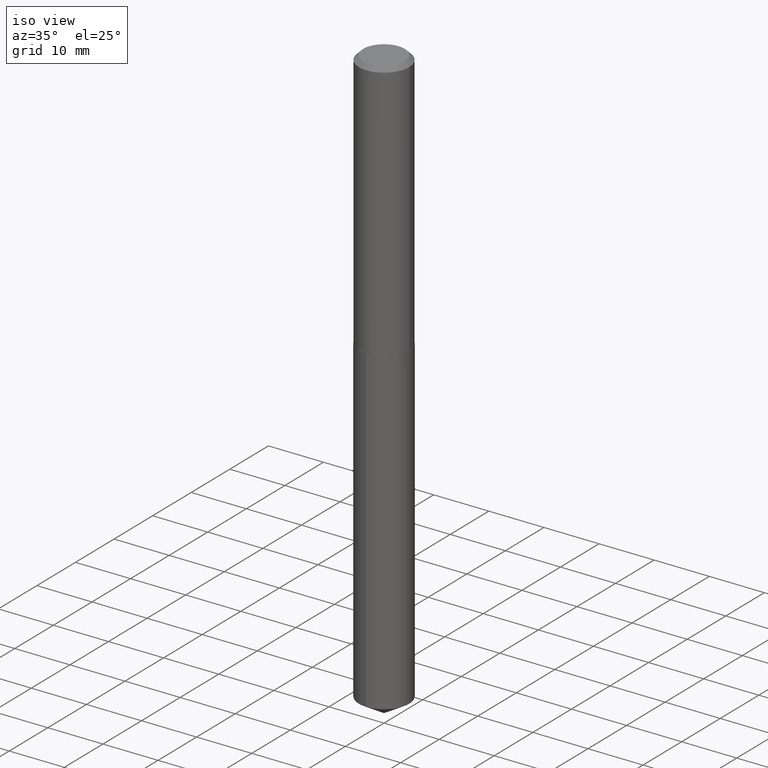
[diagram: clean part render]
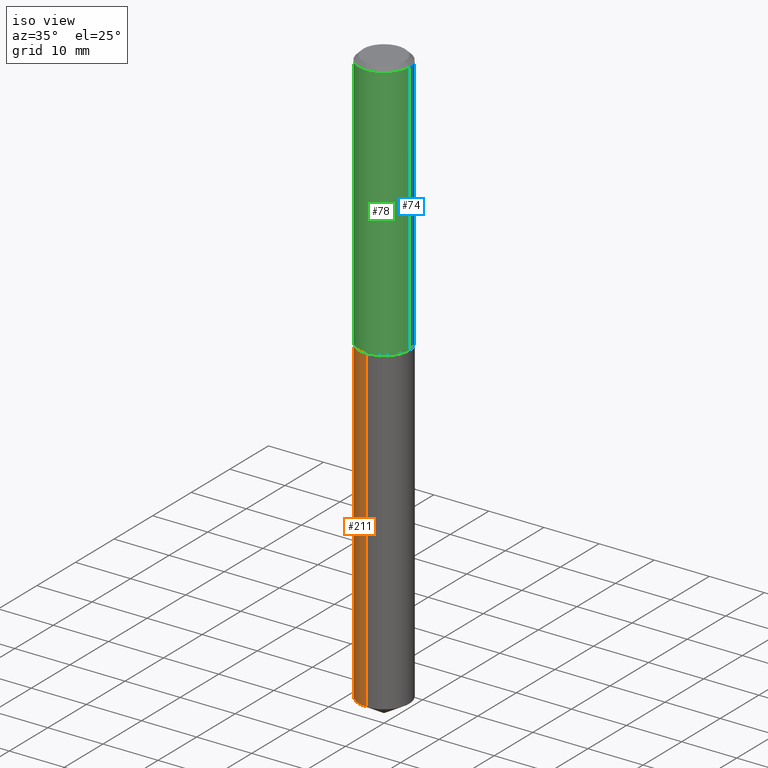
[diagram: same view with three faces highlighted in distinct colors, each labeled with its STEP entity id]
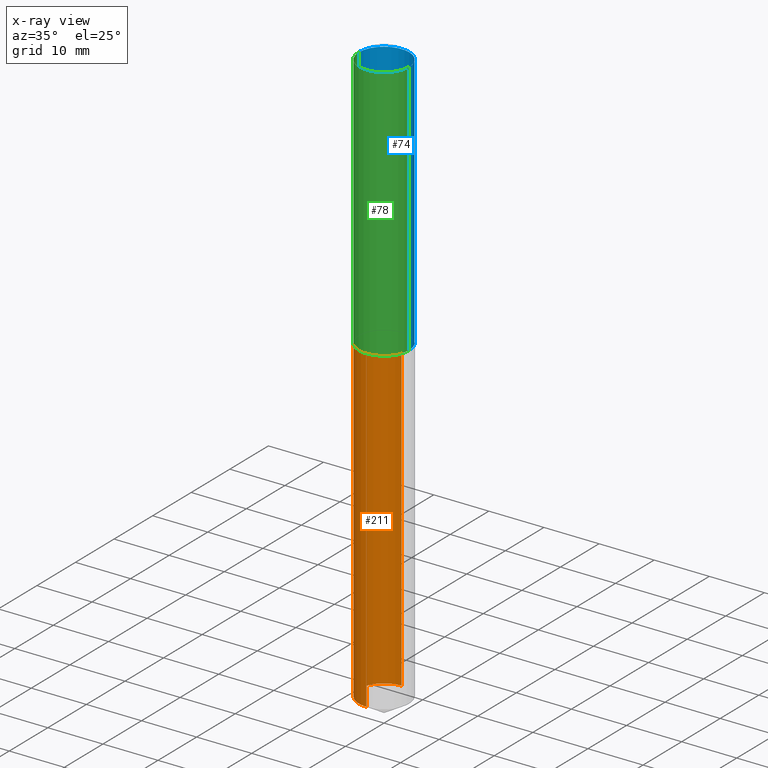
[diagram: x-ray of the same camera — body ghosted, the three highlighted faces saturated]
A machine part, iso view with three faces highlighted in distinct colors.
The next image is the same camera in x-ray (body ghosted, the three faces saturated) — at least one of them is partly hidden behind the body in this view.
Their STEP definitions:

[orange] entity #211 — the highlighted cylindrical surface (edge-blend (fillet) strip) has radius 4.5644 mm, axis along (-0, 0, 1).
#2 = VERTEX_POINT ( 'NONE', #67 ) ;
#7 = CARTESIAN_POINT ( 'NONE',  ( 1.276845296161000998E-15, 0.1796999999999854825, -4.142025346760749294 ) ) ;
#12 = LINE ( 'NONE', #288, #386 ) ;
#20 = EDGE_CURVE ( 'NONE', #55, #203, #26, .T. ) ;
#26 = CIRCLE ( 'NONE', #323, 0.1796999999999999986 ) ;
#35 = CYLINDRICAL_SURFACE ( 'NONE', #106, 0.1796999999999999986 ) ;
#55 = VERTEX_POINT ( 'NONE', #7 ) ;
#63 = ORIENTED_EDGE ( 'NONE', *, *, #141, .F. ) ;
#67 = CARTESIAN_POINT ( 'NONE',  ( -1.254838393180176568E-15, -0.1797000000000064934, -1.859399999999999054 ) ) ;
#90 = ORIENTED_EDGE ( 'NONE', *, *, #132, .T. ) ;
#104 = EDGE_LOOP ( 'NONE', ( #63, #171, #90, #277 ) ) ;
#106 = AXIS2_PLACEMENT_3D ( 'NONE', #232, #352, #202 ) ;
#132 = EDGE_CURVE ( 'NONE', #203, #2, #12, .T. ) ;
#141 = EDGE_CURVE ( 'NONE', #55, #306, #257, .T. ) ;
#145 = CARTESIAN_POINT ( 'NONE',  ( 4.547104698220641654E-29, -6.492060401444943851E-15, -1.859399999999999498 ) ) ;
#163 = CARTESIAN_POINT ( 'NONE',  ( 1.276845296161001393E-15, 0.1796999999999935038, -1.859400000000000164 ) ) ;
#167 = EDGE_CURVE ( 'NONE', #306, #2, #296, .T. ) ;
#171 = ORIENTED_EDGE ( 'NONE', *, *, #20, .T. ) ;
#172 = CARTESIAN_POINT ( 'NONE',  ( -1.254838393180120559E-15, -0.1797000000000144315, -4.142025346760748405 ) ) ;
#186 = DIRECTION ( 'NONE',  ( -6.982962677686265922E-15, -1.000000000000000000, 3.040454083098790380E-15 ) ) ;
#187 = CARTESIAN_POINT ( 'NONE',  ( 1.012921937126797406E-28, -1.446176755498018417E-14, -4.142025346760748405 ) ) ;
#202 = DIRECTION ( 'NONE',  ( -6.982962677686265922E-15, -1.000000000000000000, 3.040454083098790380E-15 ) ) ;
#203 = VERTEX_POINT ( 'NONE', #172 ) ;
#211 = ADVANCED_FACE ( 'NONE', ( #304 ), #35, .T. ) ;
#222 = VECTOR ( 'NONE', #240, 39.37007874015748143 ) ;
#229 = AXIS2_PLACEMENT_3D ( 'NONE', #145, #357, #268 ) ;
#232 = CARTESIAN_POINT ( 'NONE',  ( 4.547104698220641654E-29, -6.492060401444943851E-15, -1.859399999999999498 ) ) ;
#240 = DIRECTION ( 'NONE',  ( -2.445480017545961614E-29, 3.491465283536333646E-15, 1.000000000000000000 ) ) ;
#257 = LINE ( 'NONE', #375, #222 ) ;
#268 = DIRECTION ( 'NONE',  ( -6.982962677686265922E-15, -1.000000000000000000, 3.040454083098790380E-15 ) ) ;
#270 = DIRECTION ( 'NONE',  ( -2.445480017545961614E-29, 3.491465283536333251E-15, 1.000000000000000000 ) ) ;
#277 = ORIENTED_EDGE ( 'NONE', *, *, #167, .F. ) ;
#288 = CARTESIAN_POINT ( 'NONE',  ( -1.254838393180176568E-15, -0.1797000000000064934, -1.859399999999999054 ) ) ;
#296 = CIRCLE ( 'NONE', #229, 0.1796999999999999986 ) ;
#304 = FACE_OUTER_BOUND ( 'NONE', #104, .T. ) ;
#306 = VERTEX_POINT ( 'NONE', #163 ) ;
#323 = AXIS2_PLACEMENT_3D ( 'NONE', #187, #270, #186 ) ;
#347 = DIRECTION ( 'NONE',  ( -2.445480017545961614E-29, 3.491465283536333646E-15, 1.000000000000000000 ) ) ;
#352 = DIRECTION ( 'NONE',  ( -2.445480017545961614E-29, 3.491465283536333251E-15, 1.000000000000000000 ) ) ;
#357 = DIRECTION ( 'NONE',  ( -2.445480017545961614E-29, 3.491465283536333251E-15, 1.000000000000000000 ) ) ;
#375 = CARTESIAN_POINT ( 'NONE',  ( 1.276845296160945187E-15, 0.1796999999999935038, -1.859400000000000164 ) ) ;
#386 = VECTOR ( 'NONE', #347, 39.37007874015748143 ) ;

[blue] entity #74 — the highlighted cylindrical surface (edge-blend (fillet) strip) has radius 4.5644 mm, axis along (-0, 0, 1).
#5 = AXIS2_PLACEMENT_3D ( 'NONE', #371, #373, #348 ) ;
#24 = EDGE_CURVE ( 'NONE', #176, #329, #194, .T. ) ;
#25 = CARTESIAN_POINT ( 'NONE',  ( 0.1797000000000001929, -7.745153053955744867E-15, -1.858899999999999775 ) ) ;
#41 = CARTESIAN_POINT ( 'NONE',  ( -0.1796999999999999986, -2.022866430146284319E-15, -0.03125000000000024286 ) ) ;
#66 = CIRCLE ( 'NONE', #5, 0.1796999999999999986 ) ;
#68 = LINE ( 'NONE', #183, #73 ) ;
#72 = EDGE_CURVE ( 'NONE', #329, #94, #68, .T. ) ;
#73 = VECTOR ( 'NONE', #389, 39.37007874015748143 ) ;
#74 = ADVANCED_FACE ( 'NONE', ( #124 ), #360, .T. ) ;
#94 = VERTEX_POINT ( 'NONE', #41 ) ;
#118 = VECTOR ( 'NONE', #319, 39.37007874015748143 ) ;
#124 = FACE_OUTER_BOUND ( 'NONE', #205, .T. ) ;
#125 = DIRECTION ( 'NONE',  ( 1.000000000000000000, -6.982962677686265922E-15, 4.876176775795935232E-29 ) ) ;
#143 = LINE ( 'NONE', #195, #118 ) ;
#173 = ORIENTED_EDGE ( 'NONE', *, *, #24, .T. ) ;
#176 = VERTEX_POINT ( 'NONE', #25 ) ;
#183 = CARTESIAN_POINT ( 'NONE',  ( -0.1797000000000001096, 1.276845296160900813E-15, -8.839326357188071190E-30 ) ) ;
#192 = CARTESIAN_POINT ( 'NONE',  ( 0.1796999999999999986, -1.363947185019071028E-15, -0.03125000000000024286 ) ) ;
#194 = CIRCLE ( 'NONE', #255, 0.1797000000000001929 ) ;
#195 = CARTESIAN_POINT ( 'NONE',  ( 0.1797000000000001096, -1.254838393180222716E-15, 8.762489666105301250E-30 ) ) ;
#205 = EDGE_LOOP ( 'NONE', ( #173, #234, #212, #382 ) ) ;
#212 = ORIENTED_EDGE ( 'NONE', *, *, #305, .F. ) ;
#234 = ORIENTED_EDGE ( 'NONE', *, *, #72, .T. ) ;
#248 = DIRECTION ( 'NONE',  ( -2.445468806185136597E-29, 3.491481338843145583E-15, 1.000000000000000000 ) ) ;
#255 = AXIS2_PLACEMENT_3D ( 'NONE', #276, #337, #363 ) ;
#258 = VERTEX_POINT ( 'NONE', #192 ) ;
#271 = AXIS2_PLACEMENT_3D ( 'NONE', #333, #248, #125 ) ;
#276 = CARTESIAN_POINT ( 'NONE',  ( 4.545881963817549414E-29, -6.490314660775522348E-15, -1.858899999999999775 ) ) ;
#284 = CARTESIAN_POINT ( 'NONE',  ( -0.1797000000000001929, -5.213469364614620154E-15, -1.858899999999999775 ) ) ;
#305 = EDGE_CURVE ( 'NONE', #258, #94, #66, .T. ) ;
#319 = DIRECTION ( 'NONE',  ( -2.445468806185136877E-29, 3.491481338843145188E-15, 1.000000000000000000 ) ) ;
#329 = VERTEX_POINT ( 'NONE', #284 ) ;
#333 = CARTESIAN_POINT ( 'NONE',  ( 0.000000000000000000, 0.000000000000000000, 0.000000000000000000 ) ) ;
#337 = DIRECTION ( 'NONE',  ( -2.445468806185136597E-29, 3.491481338843145583E-15, 1.000000000000000000 ) ) ;
#348 = DIRECTION ( 'NONE',  ( 1.000000000000000000, -6.982962677686265922E-15, 0.000000000000000000 ) ) ;
#355 = EDGE_CURVE ( 'NONE', #176, #258, #143, .T. ) ;
#360 = CYLINDRICAL_SURFACE ( 'NONE', #271, 0.1797000000000001096 ) ;
#363 = DIRECTION ( 'NONE',  ( 1.000000000000000000, -6.982962677686265922E-15, 0.000000000000000000 ) ) ;
#371 = CARTESIAN_POINT ( 'NONE',  ( 7.642090019328611420E-31, -1.091087918388491499E-16, -0.03125000000000024286 ) ) ;
#373 = DIRECTION ( 'NONE',  ( -2.445468806185136597E-29, 3.491481338843145583E-15, 1.000000000000000000 ) ) ;
#382 = ORIENTED_EDGE ( 'NONE', *, *, #355, .F. ) ;
#389 = DIRECTION ( 'NONE',  ( -2.445468806185136877E-29, 3.491481338843145188E-15, 1.000000000000000000 ) ) ;

[green] entity #78 — the highlighted cylindrical surface (edge-blend (fillet) strip) has radius 4.5644 mm, axis along (-0, 0, 1).
#25 = CARTESIAN_POINT ( 'NONE',  ( 0.1797000000000001929, -7.745153053955744867E-15, -1.858899999999999775 ) ) ;
#28 = EDGE_LOOP ( 'NONE', ( #149, #237, #262, #219 ) ) ;
#41 = CARTESIAN_POINT ( 'NONE',  ( -0.1796999999999999986, -2.022866430146284319E-15, -0.03125000000000024286 ) ) ;
#44 = DIRECTION ( 'NONE',  ( -2.445468806185136597E-29, 3.491481338843145583E-15, 1.000000000000000000 ) ) ;
#46 = DIRECTION ( 'NONE',  ( -2.445468806185136597E-29, 3.491481338843145583E-15, 1.000000000000000000 ) ) ;
#68 = LINE ( 'NONE', #183, #73 ) ;
#72 = EDGE_CURVE ( 'NONE', #329, #94, #68, .T. ) ;
#73 = VECTOR ( 'NONE', #389, 39.37007874015748143 ) ;
#75 = EDGE_CURVE ( 'NONE', #329, #176, #278, .T. ) ;
#78 = ADVANCED_FACE ( 'NONE', ( #310 ), #161, .T. ) ;
#94 = VERTEX_POINT ( 'NONE', #41 ) ;
#103 = CARTESIAN_POINT ( 'NONE',  ( 4.545881963817549414E-29, -6.490314660775522348E-15, -1.858899999999999775 ) ) ;
#107 = DIRECTION ( 'NONE',  ( 1.000000000000000000, -6.982962677686265922E-15, 0.000000000000000000 ) ) ;
#118 = VECTOR ( 'NONE', #319, 39.37007874015748143 ) ;
#131 = DIRECTION ( 'NONE',  ( -2.445468806185136597E-29, 3.491481338843145583E-15, 1.000000000000000000 ) ) ;
#143 = LINE ( 'NONE', #195, #118 ) ;
#149 = ORIENTED_EDGE ( 'NONE', *, *, #72, .F. ) ;
#161 = CYLINDRICAL_SURFACE ( 'NONE', #207, 0.1797000000000001096 ) ;
#176 = VERTEX_POINT ( 'NONE', #25 ) ;
#183 = CARTESIAN_POINT ( 'NONE',  ( -0.1797000000000001096, 1.276845296160900813E-15, -8.839326357188071190E-30 ) ) ;
#191 = AXIS2_PLACEMENT_3D ( 'NONE', #252, #46, #107 ) ;
#192 = CARTESIAN_POINT ( 'NONE',  ( 0.1796999999999999986, -1.363947185019071028E-15, -0.03125000000000024286 ) ) ;
#195 = CARTESIAN_POINT ( 'NONE',  ( 0.1797000000000001096, -1.254838393180222716E-15, 8.762489666105301250E-30 ) ) ;
#207 = AXIS2_PLACEMENT_3D ( 'NONE', #302, #131, #359 ) ;
#214 = EDGE_CURVE ( 'NONE', #94, #258, #308, .T. ) ;
#219 = ORIENTED_EDGE ( 'NONE', *, *, #214, .F. ) ;
#237 = ORIENTED_EDGE ( 'NONE', *, *, #75, .T. ) ;
#244 = DIRECTION ( 'NONE',  ( 1.000000000000000000, -6.982962677686265922E-15, 0.000000000000000000 ) ) ;
#252 = CARTESIAN_POINT ( 'NONE',  ( 7.642090019328611420E-31, -1.091087918388491499E-16, -0.03125000000000024286 ) ) ;
#258 = VERTEX_POINT ( 'NONE', #192 ) ;
#262 = ORIENTED_EDGE ( 'NONE', *, *, #355, .T. ) ;
#278 = CIRCLE ( 'NONE', #289, 0.1797000000000001929 ) ;
#284 = CARTESIAN_POINT ( 'NONE',  ( -0.1797000000000001929, -5.213469364614620154E-15, -1.858899999999999775 ) ) ;
#289 = AXIS2_PLACEMENT_3D ( 'NONE', #103, #44, #244 ) ;
#302 = CARTESIAN_POINT ( 'NONE',  ( 0.000000000000000000, 0.000000000000000000, 0.000000000000000000 ) ) ;
#308 = CIRCLE ( 'NONE', #191, 0.1796999999999999986 ) ;
#310 = FACE_OUTER_BOUND ( 'NONE', #28, .T. ) ;
#319 = DIRECTION ( 'NONE',  ( -2.445468806185136877E-29, 3.491481338843145188E-15, 1.000000000000000000 ) ) ;
#329 = VERTEX_POINT ( 'NONE', #284 ) ;
#355 = EDGE_CURVE ( 'NONE', #176, #258, #143, .T. ) ;
#359 = DIRECTION ( 'NONE',  ( 1.000000000000000000, -6.982962677686265922E-15, 4.876176775795935232E-29 ) ) ;
#389 = DIRECTION ( 'NONE',  ( -2.445468806185136877E-29, 3.491481338843145188E-15, 1.000000000000000000 ) ) ;